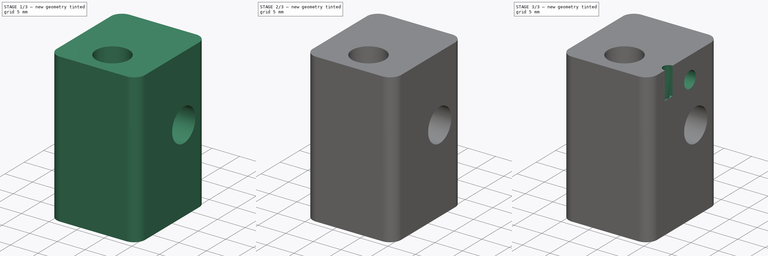
[diagram: build sequence overview — one tinted view per stage of 3, left to right]
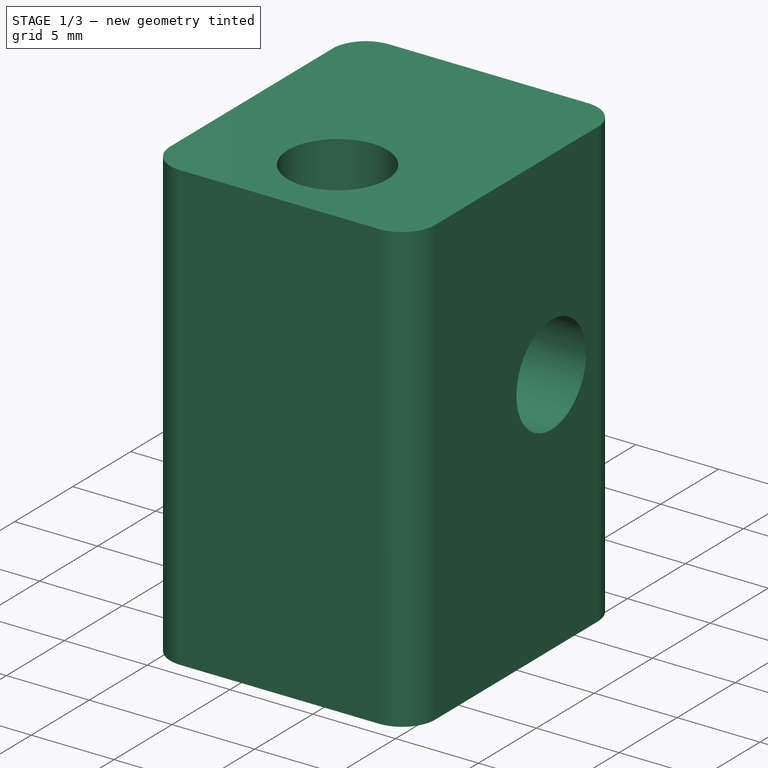
[diagram: stage 1 of 3 — iso view after this stage's code; geometry added in this stage tinted green]
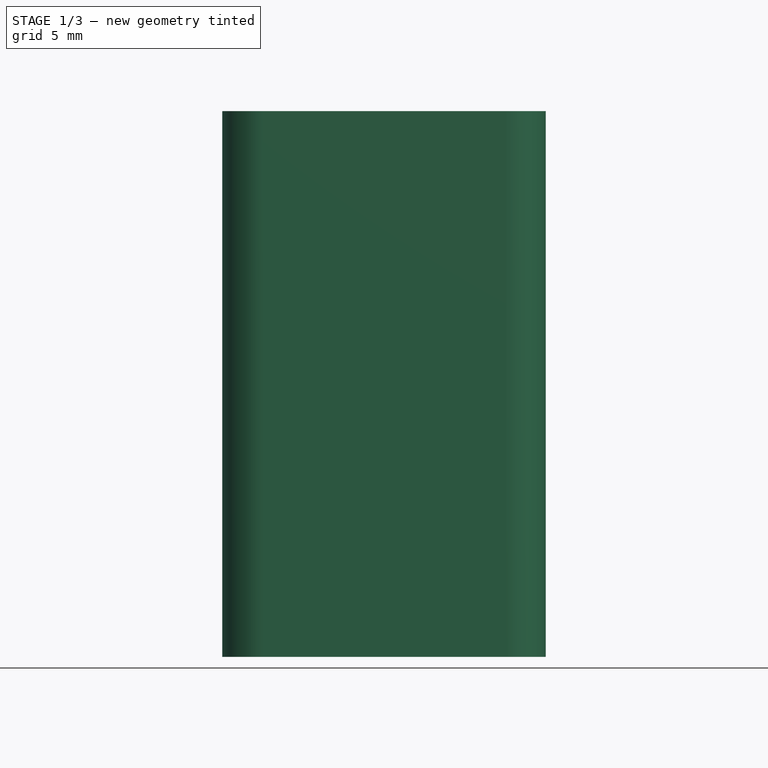
[diagram: stage 1 of 3 — front view after this stage's code; geometry added in this stage tinted green]
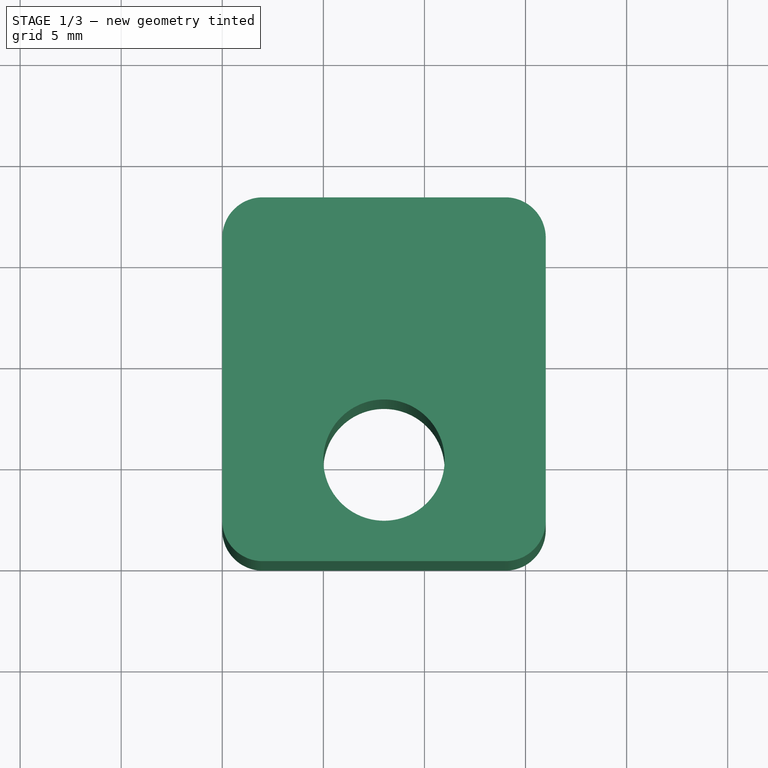
[diagram: stage 1 of 3 — top view after this stage's code; geometry added in this stage tinted green]
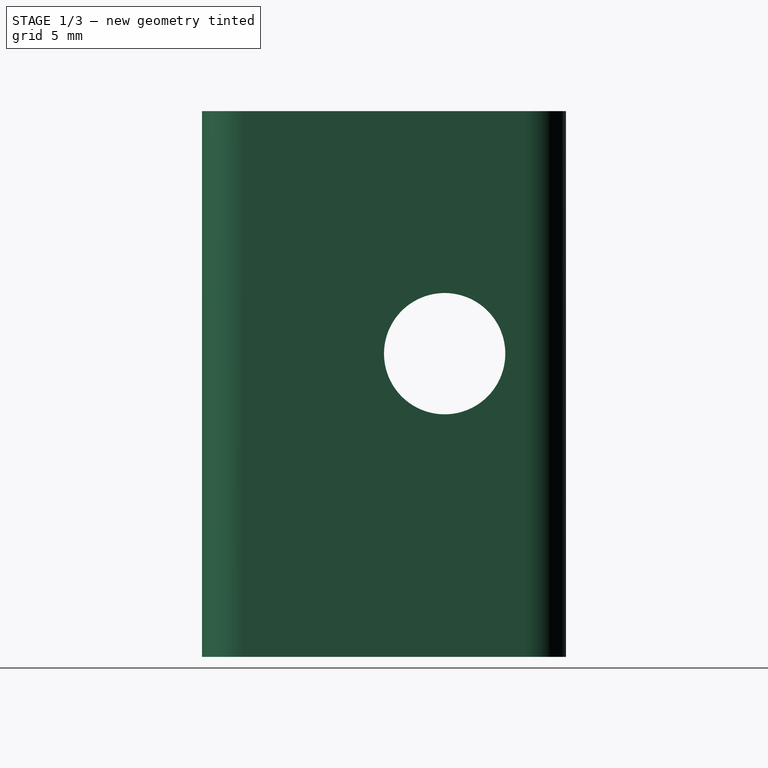
[diagram: stage 1 of 3 — right view after this stage's code; geometry added in this stage tinted green]
FCSTD DOCUMENT  (FreeCAD 0.16R4695 (Git))
Label: extended_hex_HB_0.1_drawing
License: CC-BY 3.0
LicenseURL: http://creativecommons.org/licenses/by/3.0/
objects: Drawing::FeatureView×26, Sketcher::SketchObject×7, PartDesign::Pocket×6, Drawing::FeatureViewPart×6, PartDesign::Pad×1, PartDesign::Fillet×1, Drawing::FeaturePage×1
note: 22 computed .brp shape members not serialized (recipe doc carries the construction recipe); baked Part::Feature solids carry a one-line shape summary decoded from their .brp

FEATURE [Sketcher::SketchObject] Sketch
  sketch-geometry (5):
    g0: LineSegment StartX=0 StartY=0 StartZ=0 EndX=16 EndY=0 EndZ=0
    g1: LineSegment StartX=16 StartY=0 StartZ=0 EndX=16 EndY=18 EndZ=0
    g2: LineSegment StartX=16 StartY=18 StartZ=0 EndX=0 EndY=18 EndZ=0
    g3: LineSegment StartX=0 StartY=18 StartZ=0 EndX=0 EndY=0 EndZ=0
    g4: Circle CenterX=8 CenterY=5 CenterZ=0 NormalX=0 NormalY=0 NormalZ=1 Radius=3
  constraints (14):
    c: Coincident(g0,g1)
    c: Coincident(g1,g2)
    c: Coincident(g2,g3)
    c: Coincident(g3,g0)
    c: Horizontal(g0)
    c: Horizontal(g2)
    c: Vertical(g1)
    c: Vertical(g3)
    c: Coincident(g0,g-1)
    c: DistanceY(g3) = -18
    c: DistanceX(g2) = -16
    c: DistanceX(g4) = 8
    c: DistanceY(g4) = 5
    c: Radius(g4) = 3
FEATURE [PartDesign::Pad] Pad
  Length = 27
  Length2 = 100
  Sketch = -> Sketch
  Type = 0
FEATURE [PartDesign::Fillet] Fillet
  Base = -> Pad [Edge1,Edge2,Edge8,Edge5]
  Radius = 2
FEATURE [Sketcher::SketchObject] Sketch001
  Placement = pos=(16,0,0) rot=(0.57735,0.57735,0.57735;2.0944rad)
  Support = -> Fillet [Face7]
  sketch-geometry (1):
    g0: Circle CenterX=12 CenterY=15 CenterZ=0 NormalX=0 NormalY=0 NormalZ=1 Radius=3
  constraints (3):
    c: DistanceX(g0) = 12
    c: DistanceY(g0) = 15
    c: Radius(g0) = 3
FEATURE [PartDesign::Pocket] Pocket
  Length = 5
  Sketch = -> Sketch001
  Type = 1
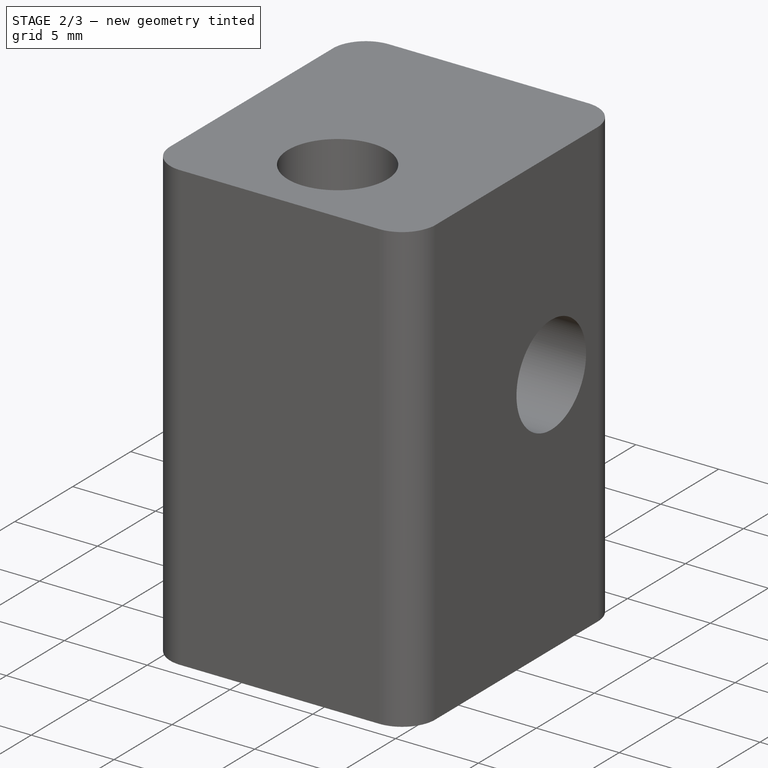
[diagram: stage 2 of 3 — iso view after this stage's code; geometry added in this stage tinted green]
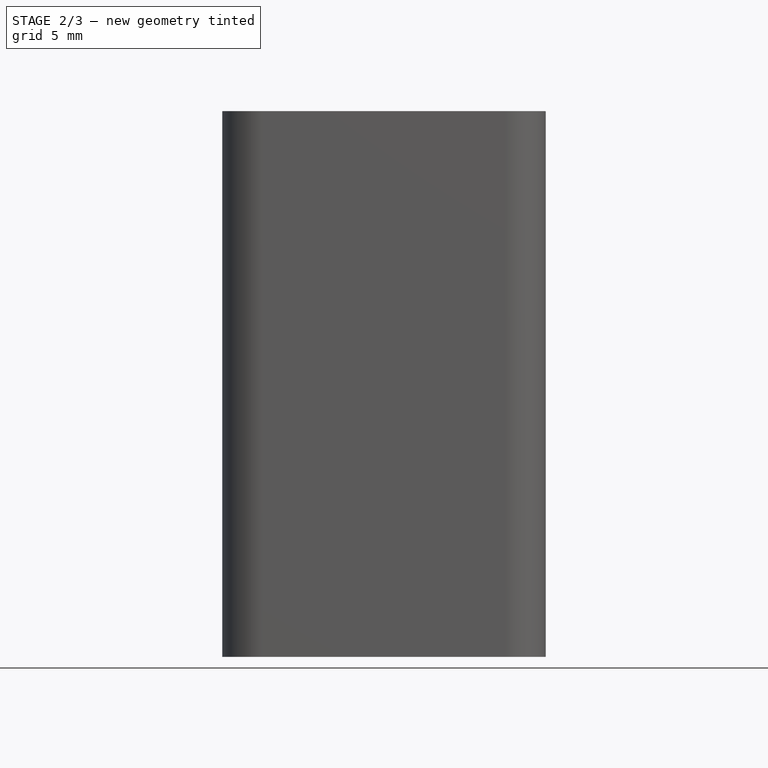
[diagram: stage 2 of 3 — front view after this stage's code; geometry added in this stage tinted green]
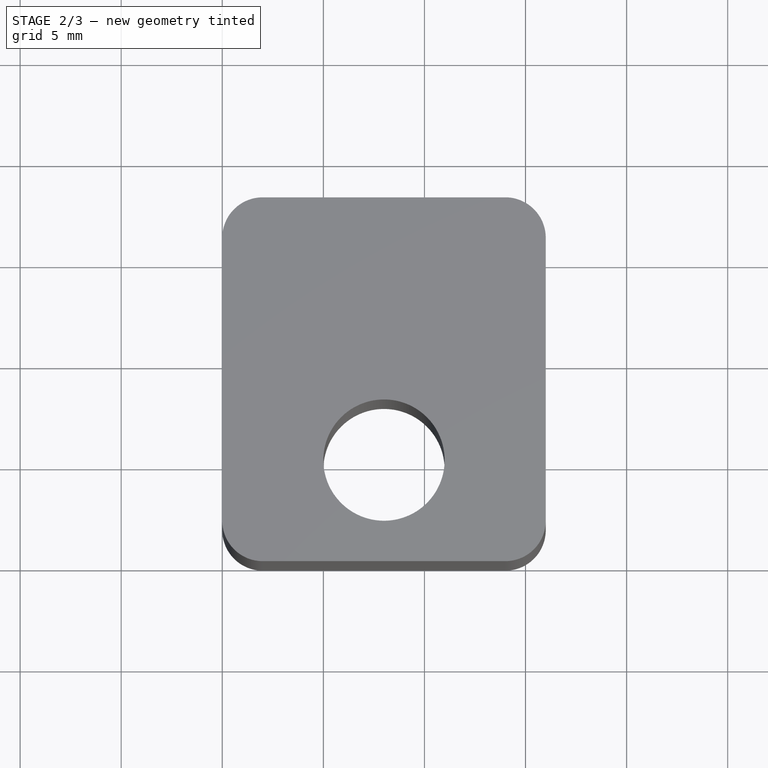
[diagram: stage 2 of 3 — top view after this stage's code; geometry added in this stage tinted green]
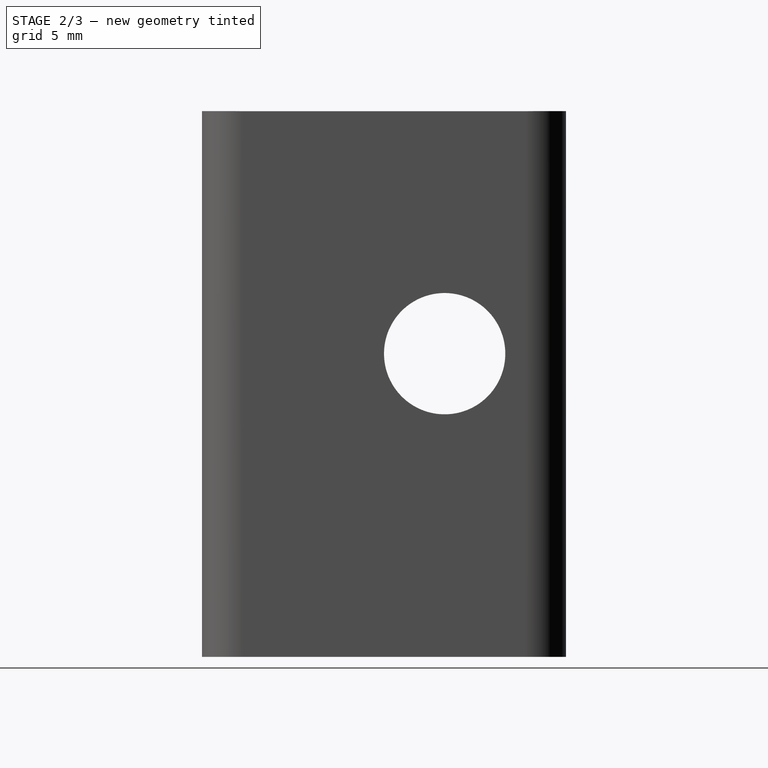
[diagram: stage 2 of 3 — right view after this stage's code; geometry added in this stage tinted green]
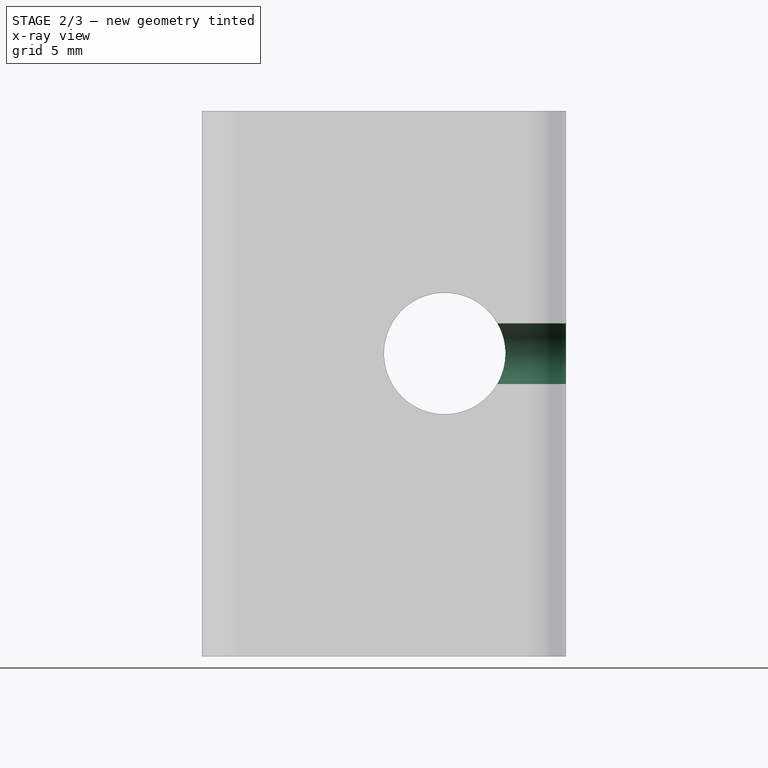
[diagram: stage 2 of 3 — x-ray composite at the right view; earlier geometry ghosted, this stage's added geometry solid]
FEATURE [Sketcher::SketchObject] Sketch002
  Placement = pos=(0,18,0) rot=(0,0.707107,0.707107;3.14159rad)
  Support = -> Pocket [Face10]
  sketch-geometry (1):
    g0: Circle CenterX=-8 CenterY=15 CenterZ=0 NormalX=0 NormalY=0 NormalZ=1 Radius=1.5
  constraints (3):
    c: DistanceX(g0) = -8
    c: DistanceY(g0) = 15
    c: Radius(g0) = 1.5
FEATURE [PartDesign::Pocket] Pocket001
  Length = 5
  Sketch = -> Sketch002
  Type = 0
FEATURE [Sketcher::SketchObject] Sketch003
  ExternalGeometry = -> [Pocket001]
  Placement = pos=(0,0,0) rot=(1,0,0;1.5708rad)
  Support = -> Pocket001 [Face1]
  sketch-geometry (3):
    g0: LineSegment StartX=15 StartY=27.2 StartZ=0 EndX=20 EndY=26.1372 EndZ=0
    g1: LineSegment StartX=20 StartY=26.1372 StartZ=0 EndX=20 EndY=27.2 EndZ=0
    g2: LineSegment StartX=20 StartY=27.2 StartZ=0 EndX=15 EndY=27.2 EndZ=0
  constraints (9):
    c: Coincident(g0,g1)
    c: Vertical(g1)
    c: Coincident(g1,g2)
    c: Coincident(g2,g0)
    c: Horizontal(g2)
    c: Angle(g0,g2) = 0.20944
    c: DistanceX(g2) = -5
    c: DistanceX(g-3,g0) = 1
    c: DistanceY(g0,g-3) = -0.2
FEATURE [PartDesign::Pocket] Pocket002
  Length = 5
  Sketch = -> Sketch003
  Type = 1
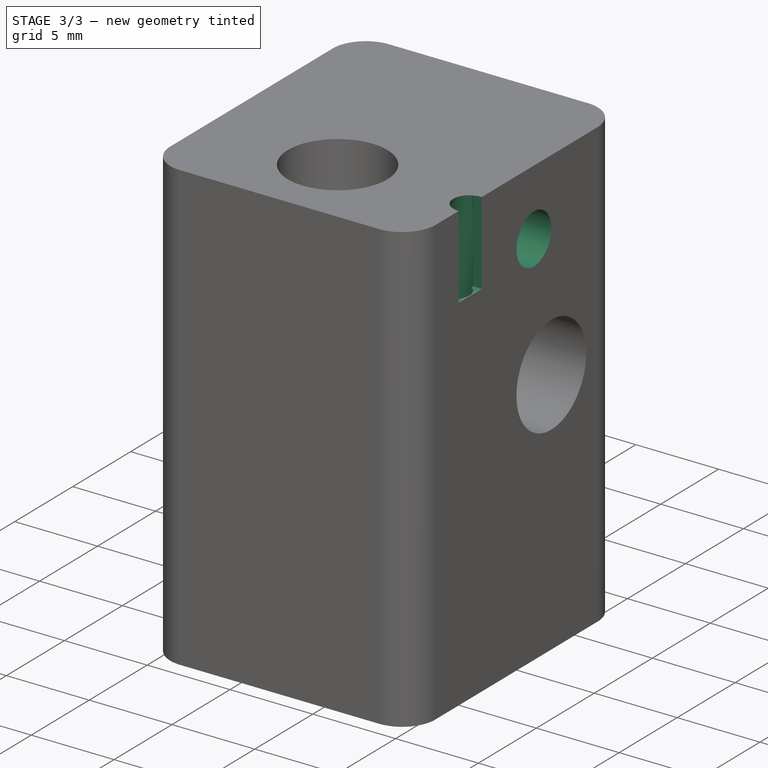
[diagram: stage 3 of 3 — iso view after this stage's code; geometry added in this stage tinted green]
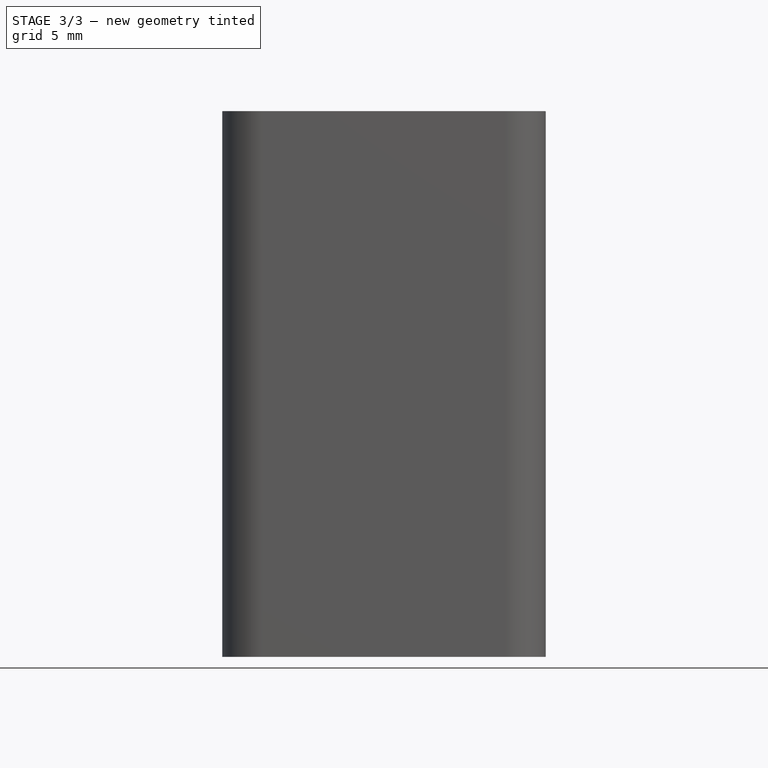
[diagram: stage 3 of 3 — front view after this stage's code; geometry added in this stage tinted green]
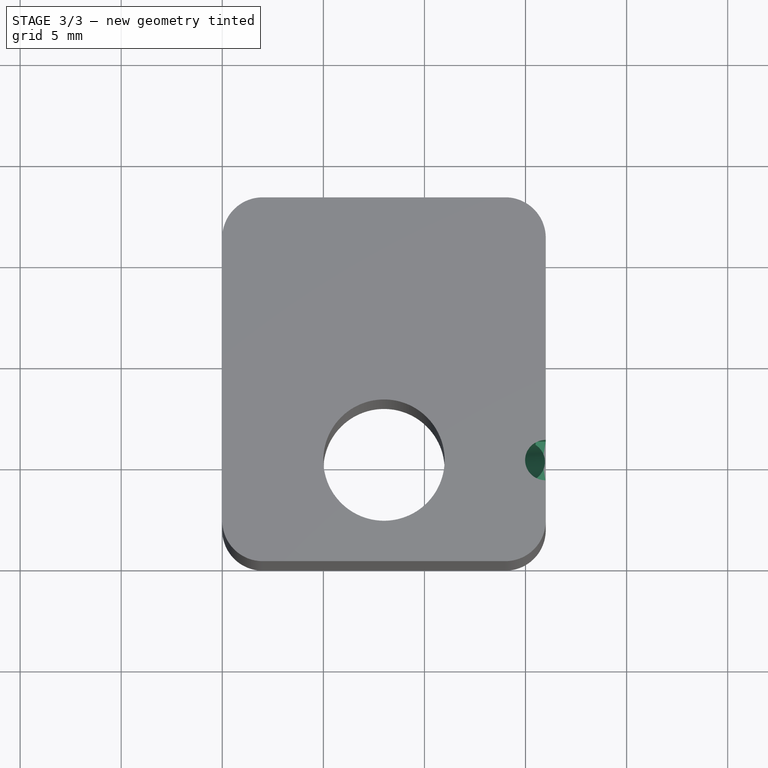
[diagram: stage 3 of 3 — top view after this stage's code; geometry added in this stage tinted green]
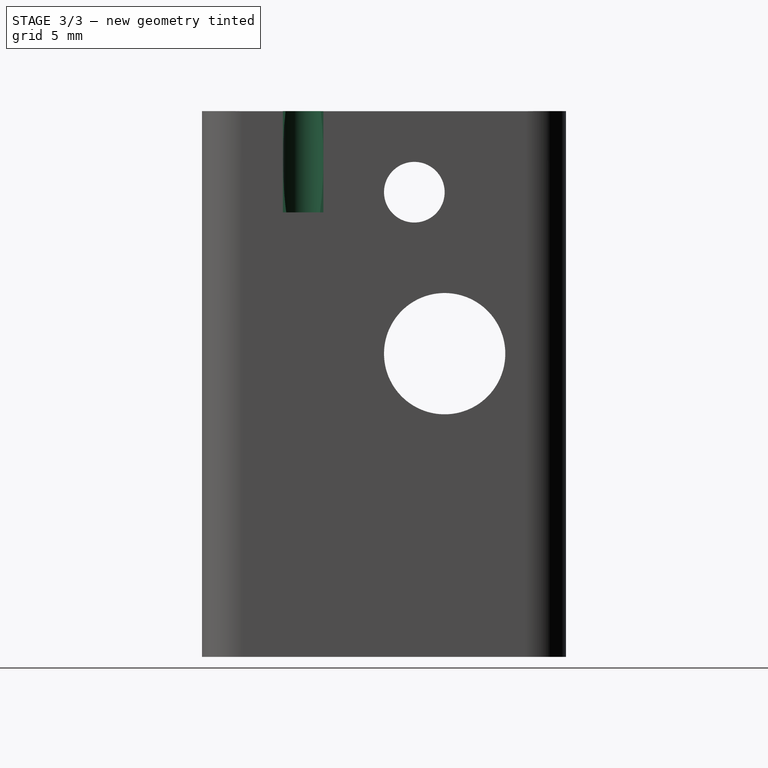
[diagram: stage 3 of 3 — right view after this stage's code; geometry added in this stage tinted green]
FEATURE [Sketcher::SketchObject] Sketch004
  ExternalGeometry = -> [Pocket002]
  Placement = pos=(6.18003,0,29.0747) rot=(0,1,0;0.20944rad)
  Support = -> Pocket002 [Face12]
  sketch-geometry (1):
    g0: Circle CenterX=10.0394 CenterY=5 CenterZ=0 NormalX=0 NormalY=0 NormalZ=1 Radius=1
  constraints (3):
    c: PointOnObject(g0,g-3)
    c: DistanceY(g-1,g0) = 5
    c: Radius(g0) = 1
FEATURE [PartDesign::Pocket] Pocket003
  Length = 14.5
  Sketch = -> Sketch004
  Type = 0
FEATURE [Sketcher::SketchObject] Sketch005
  ExternalGeometry = -> [Pocket003]
  Placement = pos=(16,0,0) rot=(0.57735,0.57735,0.57735;2.0944rad)
  Support = -> Pocket003 [Face7]
  sketch-geometry (4):
    g0: LineSegment StartX=4 StartY=26.9874 StartZ=0 EndX=6 EndY=26.9874 EndZ=0
    g1: LineSegment StartX=6 StartY=26.9874 StartZ=0 EndX=6 EndY=21.9874 EndZ=0
    g2: LineSegment StartX=6 StartY=21.9874 StartZ=0 EndX=4 EndY=21.9874 EndZ=0
    g3: LineSegment StartX=4 StartY=21.9874 StartZ=0 EndX=4 EndY=26.9874 EndZ=0
  constraints (11):
    c: Coincident(g0,g1)
    c: Coincident(g1,g2)
    c: Coincident(g2,g3)
    c: Coincident(g3,g0)
    c: Horizontal(g0)
    c: Horizontal(g2)
    c: Vertical(g1)
    c: Vertical(g3)
    c: Coincident(g0,g-3)
    c: DistanceX(g0) = 2
    c: DistanceY(g3) = 5
FEATURE [PartDesign::Pocket] Pocket004
  Length = 0.5
  Sketch = -> Sketch005
  Type = 0
FEATURE [Sketcher::SketchObject] Sketch006
  ExternalGeometry = -> [Pocket004]
  Placement = pos=(16,0,0) rot=(0.57735,0.57735,0.57735;2.0944rad)
  Support = -> Pocket004 [Face7]
  sketch-geometry (1):
    g0: Circle CenterX=10.5 CenterY=22.9874 CenterZ=0 NormalX=0 NormalY=0 NormalZ=1 Radius=1.5
  constraints (3):
    c: Radius(g0) = 1.5
    c: DistanceY(g0,g-3) = 4
    c: DistanceX(g0,g-5) = 1.5
FEATURE [PartDesign::Pocket] Pocket005
  Length = 5
  Sketch = -> Sketch006
  Type = 1
FEATURE [Drawing::FeatureView] dim001
  Rotation = 0
  ViewResult = <g   >\n <line x1="137.644760" y1="75.312608" x2="131.916962" y2="48.366533" style="stroke:rgb(0,0,255);stroke-width:0.300000" />\n<line x1="138.000000" y1="67.768900" x2="138.000000" y2="47.727154" style="stroke:rgb(0,0,255);stroke-width:0.300000" />\n<path d = "M 132.124882 49.344678 A 28.256657 28.256657 0 0 1 138.000000 48.727154" style="stroke:rgb(0,0,255);stroke-width:0.30;fill:none" />\n<polygon points="132.124882,49.344678 135.267239,49.699065 136.037465,48.512999 134.851399,47.742773" style="fill:rgb(0,0,255);stroke:rgb(0,0,255);stroke-width:0" />\n<polygon points="138.000000,48.727154 135.000000,47.727154 134.000000,48.727154 135.000000,49.727154" style="fill:rgb(0,0,255);stroke:rgb(0,0,255);stroke-width:0" />\n<text x="132.736132" y="45.849695" font-family="Verdana" font-size="3.6" fill="rgb(255,0,0)" text-anchor="-1.73828317591"  >12.0°</text>\n <!--12.0004747513-->\n <!--%3.1f°-->\n</g> 
  Visible = true
  X = 0
  Y = 0
FEATURE [Drawing::FeatureView] centerLines001
  Rotation = 0
  ViewResult = <g  transform="scale(1.500000,1.500000)" stroke="rgb(0,0,255)"  stroke-width="0.200000" >\n<path d="M 62.666667,60.903600 L 62.666667,59.570267 M 62.666667,58.236933 L 62.666667,54.236933 M 62.666667,52.903600 L 62.666667,51.570267 M 62.666667,50.236933 L 62.666667,46.236933 M 62.666667,44.903600 L 62.666667,43.570267 M 62.666667,42.236933 L 62.666667,39.981991 "/>\n<path d="M 62.666667,60.903600 L 62.666667,59.570267 M 62.666667,58.236933 L 62.666667,54.236933 M 62.666667,52.903600 L 62.666667,51.570267 M 62.666667,50.236933 L 62.666667,46.236933 M 62.666667,44.903600 L 62.666667,43.570267 M 62.666667,42.236933 L 62.666667,38.236933 M 62.666667,36.903600 L 62.666667,36.485445 "/>\n</g> 
  Visible = true
  X = 0
  Y = 0
FEATURE [Drawing::FeatureView] centerLines003
  Rotation = 0
  ViewResult = <g  transform="scale(1.500000,1.500000)" stroke="rgb(0,0,255)"  stroke-width="0.200000" >\n<path d="M 69.666667,58.500000 L 69.666667,57.166667 M 69.666667,55.833333 L 69.666667,51.833333 M 69.666667,50.500000 L 69.666667,49.166667 M 69.666667,47.833333 L 69.666667,43.833333 M 69.666667,42.500000 L 69.666667,41.166667 "/>\n<path d="M 69.666667,58.500000 L 71.000000,58.500000 M 72.333333,58.500000 L 76.309959,58.500000 "/>\n<path d="M 69.666667,58.500000 L 69.666667,59.833333 "/>\n<path d="M 69.666667,58.500000 L 68.333333,58.500000 "/>\n</g> 
  Visible = true
  X = 0
  Y = 0
FEATURE [Drawing::FeatureViewPart] Ortho005  label="Ortho_2_0"
  Direction = (-1,0,0)
  HiddenWidth = 0.15
  LineWidth = 0.35
  Rotation = 90
  Scale = 1.5
  ShowHiddenLines = true
  ShowSmoothLines = false
  Source = -> Pocket005
  Tolerance = 0.05
  ViewResult = <blob: 9644 chars omitted>
  Visible = true
  X = 213.5
  Y = 110.25
FEATURE [Drawing::FeatureViewPart] Ortho003  label="Ortho_0_1"
  Direction = (0,0,1)
  HiddenWidth = 0.15
  LineWidth = 0.35
  Rotation = 90
  Scale = 1.5
  ShowHiddenLines = true
  ShowSmoothLines = false
  Source = -> Pocket005
  Tolerance = 0.05
  ViewResult = <blob: 6862 chars omitted>
  Visible = true
  X = 86.5
  Y = 18
FEATURE [Drawing::FeatureViewPart] Ortho004  label="Ortho_0_-1"
  Direction = (0,0,-1)
  HiddenWidth = 0.15
  LineWidth = 0.35
  Rotation = 90
  Scale = 1.5
  ShowHiddenLines = true
  ShowSmoothLines = false
  Source = -> Pocket005
  Tolerance = 0.05
  ViewResult = <blob: 7122 chars omitted>
  Visible = true
  X = 86.5
  Y = 162
FEATURE [Drawing::FeatureViewPart] Ortho002  label="Ortho_1_0"
  Direction = (0,1,0)
  HiddenWidth = 0.15
  LineWidth = 0.35
  Rotation = -90
  Scale = 1.5
  ShowHiddenLines = true
  ShowSmoothLines = false
  Source = -> Pocket005
  Tolerance = 0.05
  ViewResult = <blob: 11721 chars omitted>
  Visible = true
  X = 162
  Y = 110.25
FEATURE [Drawing::FeatureViewPart] Ortho001  label="Ortho_-1_0"
  Direction = (0,-1,0)
  HiddenWidth = 0.15
  LineWidth = 0.35
  Rotation = 90
  Scale = 1.5
  ShowHiddenLines = true
  ShowSmoothLines = false
  Source = -> Pocket005
  Tolerance = 0.05
  ViewResult = <blob: 12300 chars omitted>
  Visible = true
  X = 38
  Y = 110.25
FEATURE [Drawing::FeatureViewPart] Ortho  label="Ortho_0_0"
  Direction = (1,0,0)
  HiddenWidth = 0.15
  LineWidth = 0.35
  Rotation = -90
  Scale = 1.5
  ShowHiddenLines = true
  ShowSmoothLines = false
  Source = -> Pocket005
  Tolerance = 0.05
  ViewResult = <blob: 9604 chars omitted>
  Visible = true
  X = 86.5
  Y = 110.25
FEATURE [Drawing::FeatureView] centerLines002
  Rotation = 0
  ViewResult = <g  transform="scale(1.500000,1.500000)" stroke="rgb(0,0,255)"  stroke-width="0.200000" >\n<path d="M 68.166667,50.512600 L 68.166667,51.845933 "/>\n<path d="M 68.166667,50.512600 L 66.833333,50.512600 "/>\n<path d="M 68.166667,50.512600 L 68.166667,49.179267 M 68.166667,47.845933 L 68.166667,43.845933 M 68.166667,42.512600 L 68.166667,41.179267 "/>\n<path d="M 68.166667,50.512600 L 69.500000,50.512600 M 70.833333,50.512600 L 73.687568,50.512600 "/>\n</g> 
  Visible = true
  X = 0
  Y = 0
FEATURE [Drawing::FeatureView] dim002
  Rotation = 0
  ViewResult = <g   >\n<line x1="86.500000" y1="67.750000" x2="86.500000" y2="61.356760" style="stroke:rgb(0,0,255);stroke-width:0.30" />\n<line x1="94.000000" y1="61.972987" x2="94.000000" y2="63.356760" style="stroke:rgb(0,0,255);stroke-width:0.30" />\n<line x1="86.500000" y1="62.356760" x2="94.000000" y2="62.356760" style="stroke:rgb(0,0,255);stroke-width:0.30" />\n<polygon points="86.500000,62.356760 83.500000,61.356760 82.500000,62.356760 83.500000,63.356760" style="fill:rgb(0,0,255);stroke:rgb(0,0,255);stroke-width:0" /><polygon points="94.000000,62.356760 97.000000,63.356760 98.000000,62.356760 97.000000,61.356760" style="fill:rgb(0,0,255);stroke:rgb(0,0,255);stroke-width:0" />\n<text x="71.812791" y="63.256373" font-family="Verdana" font-size="3.6" fill="rgb(255,0,0)" text-anchor="inherit"  >5.00</text>\n</g> 
  Visible = true
  X = 0
  Y = 0
FEATURE [Drawing::FeatureView] dim003
  Rotation = 0
  ViewResult = <g   >\n<line x1="84.500000" y1="110.250000" x2="74.924698" y2="110.250000" style="stroke:rgb(0,0,255);stroke-width:0.30" />\n<line x1="84.500000" y1="69.750000" x2="74.924698" y2="69.750000" style="stroke:rgb(0,0,255);stroke-width:0.30" />\n<line x1="75.924698" y1="110.250000" x2="75.924698" y2="69.750000" style="stroke:rgb(0,0,255);stroke-width:0.30" />\n<polygon points="75.924698,110.250000 76.924698,107.250000 75.924698,106.250000 74.924698,107.250000" style="fill:rgb(0,0,255);stroke:rgb(0,0,255);stroke-width:0" /><polygon points="75.924698,69.750000 74.924698,72.750000 75.924698,73.750000 76.924698,72.750000" style="fill:rgb(0,0,255);stroke:rgb(0,0,255);stroke-width:0" />\n<text x="72.950904" y="90.421948" font-family="Verdana" font-size="3.6" fill="rgb(255,0,0)" text-anchor="inherit" transform="rotate(-90.000000 72.950904,90.421948)" >27.00</text>\n</g> 
  Visible = true
  X = 0
  Y = 0
FEATURE [Drawing::FeatureView] dim004
  Rotation = 0
  ViewResult = <g   >\n<line x1="86.500000" y1="67.750000" x2="86.500000" y2="54.583294" style="stroke:rgb(0,0,255);stroke-width:0.30" />\n<line x1="102.250000" y1="59.768901" x2="102.250000" y2="54.583294" style="stroke:rgb(0,0,255);stroke-width:0.30" />\n<line x1="86.500000" y1="55.583294" x2="102.250000" y2="55.583294" style="stroke:rgb(0,0,255);stroke-width:0.30" />\n<polygon points="86.500000,55.583294 89.500000,56.583294 90.500000,55.583294 89.500000,54.583294" style="fill:rgb(0,0,255);stroke:rgb(0,0,255);stroke-width:0" /><polygon points="102.250000,55.583294 99.250000,54.583294 98.250000,55.583294 99.250000,56.583294" style="fill:rgb(0,0,255);stroke:rgb(0,0,255);stroke-width:0" />\n<text x="70.896032" y="56.839060" font-family="Verdana" font-size="3.6" fill="rgb(255,0,0)" text-anchor="inherit"  >10.50</text>\n</g> 
  Visible = true
  X = 0
  Y = 0
FEATURE [Drawing::FeatureView] dim005
  Rotation = 0
  ViewResult = <g   >\n<line x1="86.500000" y1="67.750000" x2="86.500000" y2="48.902706" style="stroke:rgb(0,0,255);stroke-width:0.30" />\n<line x1="104.500000" y1="59.750000" x2="104.500000" y2="48.902706" style="stroke:rgb(0,0,255);stroke-width:0.30" />\n<line x1="86.500000" y1="49.902706" x2="104.500000" y2="49.902706" style="stroke:rgb(0,0,255);stroke-width:0.30" />\n<polygon points="86.500000,49.902706 89.500000,50.902706 90.500000,49.902706 89.500000,48.902706" style="fill:rgb(0,0,255);stroke:rgb(0,0,255);stroke-width:0" /><polygon points="104.500000,49.902706 101.500000,48.902706 100.500000,49.902706 101.500000,50.902706" style="fill:rgb(0,0,255);stroke:rgb(0,0,255);stroke-width:0" />\n<text x="71.507204" y="50.727333" font-family="Verdana" font-size="3.6" fill="rgb(255,0,0)" text-anchor="inherit"  >12.00</text>\n</g> 
  Visible = true
  X = 0
  Y = 0
FEATURE [Drawing::FeatureView] dim006
  Rotation = 0
  ViewResult = <g   >\n<line x1="92.000000" y1="91.355400" x2="81.662335" y2="91.355400" style="stroke:rgb(0,0,255);stroke-width:0.30" />\n<line x1="84.797093" y1="110.250000" x2="81.662335" y2="110.250000" style="stroke:rgb(0,0,255);stroke-width:0.30" />\n<line x1="82.662335" y1="91.355400" x2="82.662335" y2="110.250000" style="stroke:rgb(0,0,255);stroke-width:0.30" />\n<polygon points="82.662335,91.355400 81.662335,94.355400 82.662335,95.355400 83.662335,94.355400" style="fill:rgb(0,0,255);stroke:rgb(0,0,255);stroke-width:0" /><polygon points="82.662335,110.250000 83.662335,107.250000 82.662335,106.250000 81.662335,107.250000" style="fill:rgb(0,0,255);stroke:rgb(0,0,255);stroke-width:0" />\n<text x="81.033521" y="105.465738" font-family="Verdana" font-size="3.6" fill="rgb(255,0,0)" text-anchor="inherit" transform="rotate(-90.000000 81.033521,105.465738)" >12.60</text>\n</g> 
  Visible = true
  X = 0
  Y = 0
FEATURE [Drawing::FeatureView] dim007
  Rotation = 0
  ViewResult = <g   >\n<line x1="113.490900" y1="110.250000" x2="122.672442" y2="110.250000" style="stroke:rgb(0,0,255);stroke-width:0.30" />\n<line x1="106.500000" y1="87.750000" x2="122.672442" y2="87.750000" style="stroke:rgb(0,0,255);stroke-width:0.30" />\n<line x1="121.672442" y1="110.250000" x2="121.672442" y2="87.750000" style="stroke:rgb(0,0,255);stroke-width:0.30" />\n<polygon points="121.672442,110.250000 122.672442,107.250000 121.672442,106.250000 120.672442,107.250000" style="fill:rgb(0,0,255);stroke:rgb(0,0,255);stroke-width:0" /><polygon points="121.672442,87.750000 120.672442,90.750000 121.672442,91.750000 122.672442,90.750000" style="fill:rgb(0,0,255);stroke:rgb(0,0,255);stroke-width:0" />\n<text x="120.206509" y="101.295973" font-family="Verdana" font-size="3.6" fill="rgb(255,0,0)" text-anchor="inherit" transform="rotate(-90.000000 120.206509,101.295973)" >15.00</text>\n</g> 
  Visible = true
  X = 0
  Y = 0
FEATURE [Drawing::FeatureView] dim008
  Rotation = 0
  ViewResult = <g   >\n<line x1="112.835850" y1="110.250000" x2="125.311122" y2="110.250000" style="stroke:rgb(0,0,255);stroke-width:0.30" />\n<line x1="104.250000" y1="75.768900" x2="125.311122" y2="75.768900" style="stroke:rgb(0,0,255);stroke-width:0.30" />\n<line x1="124.311122" y1="110.250000" x2="124.311122" y2="75.768900" style="stroke:rgb(0,0,255);stroke-width:0.30" />\n<polygon points="124.311122,110.250000 125.311122,107.250000 124.311122,106.250000 123.311122,107.250000" style="fill:rgb(0,0,255);stroke:rgb(0,0,255);stroke-width:0" /><polygon points="124.311122,75.768900 123.311122,78.768900 124.311122,79.768900 125.311122,78.768900" style="fill:rgb(0,0,255);stroke:rgb(0,0,255);stroke-width:0" />\n<text x="129.148701" y="97.337954" font-family="Verdana" font-size="3.6" fill="rgb(255,0,0)" text-anchor="inherit" transform="rotate(-90.000000 129.148701,97.337954)" >23.00</text>\n</g> 
  Visible = true
  X = 0
  Y = 0
FEATURE [Drawing::FeatureView] dimLine001
  Rotation = 0
  ViewResult = <g   >\n<line x1="112.513293" y1="63.328307" x2="102.250000" y2="75.768900" style="stroke:rgb(0,0,255);stroke-width:0.30" />\n<polygon points="102.250000,75.768900 104.930506,74.091138 104.795503,72.683383 103.387748,72.818387" style="fill:rgb(0,0,255);stroke:rgb(0,0,255);stroke-width:0" />\n<line x1="112.513293" y1="63.328307" x2="121.590350" y2="63.328307" style="stroke:rgb(0,0,255);stroke-width:0.30" />\n</g> 
  Visible = true
  X = 0
  Y = 0
FEATURE [Drawing::FeatureView] dimText001
  Rotation = 0
  ViewResult = <g   >\n<text x="109.769066" y="61.639552" font-family="Verdana" font-size="3.6" fill="rgb(255,0,0)" text-anchor="inherit"  >M3 THRU</text>\n</g> 
  Visible = true
  X = 0
  Y = 0
FEATURE [Drawing::FeatureView] dimLine002
  Rotation = 0
  ViewResult = <g   >\n<line x1="79.782814" y1="132.785383" x2="94.000000" y2="145.500000" style="stroke:rgb(0,0,255);stroke-width:0.30" />\n<polygon points="94.000000,145.500000 92.430425,142.754743 91.018407,142.833522 91.097186,144.245540" style="fill:rgb(0,0,255);stroke:rgb(0,0,255);stroke-width:0" />\n<line x1="79.782814" y1="132.785383" x2="53.839452" y2="132.785383" style="stroke:rgb(0,0,255);stroke-width:0.30" />\n</g> 
  Visible = true
  X = 0
  Y = 0
FEATURE [Drawing::FeatureView] dimText002
  Rotation = 0
  ViewResult = <g   >\n<text x="52.723608" y="131.669540" font-family="Verdana" font-size="3.6" fill="rgb(255,0,0)" text-anchor="inherit"  >M6x1 THRU ALL</text>\n</g> 
  Visible = true
  X = 0
  Y = 0
FEATURE [Drawing::FeatureView] centerLines004
  Rotation = 0
  ViewResult = <g  transform="scale(1.500000,1.500000)" stroke="rgb(0,0,255)"  stroke-width="0.200000" >\n<path d="M 62.666667,100.000000 L 62.666667,101.333333 "/>\n<path d="M 62.666667,100.000000 L 61.333333,100.000000 "/>\n<path d="M 62.666667,100.000000 L 62.666667,98.666667 M 62.666667,97.333333 L 62.666667,96.892416 "/>\n<path d="M 62.666667,100.000000 L 64.000000,100.000000 M 65.333333,100.000000 L 65.648796,100.000000 "/>\n</g> 
  Visible = true
  X = 0
  Y = 0
FEATURE [Drawing::FeatureView] dim009
  Rotation = 0
  ViewResult = <g   >\n<line x1="92.000000" y1="150.000000" x2="76.272166" y2="150.000000" style="stroke:rgb(0,0,255);stroke-width:0.30" />\n<line x1="87.500000" y1="162.000000" x2="76.272166" y2="162.000000" style="stroke:rgb(0,0,255);stroke-width:0.30" />\n<line x1="77.272166" y1="150.000000" x2="77.272166" y2="162.000000" style="stroke:rgb(0,0,255);stroke-width:0.30" />\n<polygon points="77.272166,150.000000 76.272166,153.000000 77.272166,154.000000 78.272166,153.000000" style="fill:rgb(0,0,255);stroke:rgb(0,0,255);stroke-width:0" /><polygon points="77.272166,162.000000 78.272166,159.000000 77.272166,158.000000 76.272166,159.000000" style="fill:rgb(0,0,255);stroke:rgb(0,0,255);stroke-width:0" />\n<text x="74.203597" y="159.844590" font-family="Verdana" font-size="3.6" fill="rgb(255,0,0)" text-anchor="inherit" transform="rotate(-90.000000 74.203597,159.844590)" >8.00</text>\n</g> 
  Visible = true
  X = 0
  Y = 0
FEATURE [Drawing::FeatureView] dim010
  Rotation = 0
  ViewResult = <g   >\n<line x1="98.056415" y1="138.000000" x2="68.182301" y2="138.000000" style="stroke:rgb(0,0,255);stroke-width:0.30" />\n<line x1="98.445635" y1="162.000000" x2="68.182301" y2="162.000000" style="stroke:rgb(0,0,255);stroke-width:0.30" />\n<line x1="69.182301" y1="138.000000" x2="69.182301" y2="162.000000" style="stroke:rgb(0,0,255);stroke-width:0.30" />\n<polygon points="69.182301,138.000000 68.182301,141.000000 69.182301,142.000000 70.182301,141.000000" style="fill:rgb(0,0,255);stroke:rgb(0,0,255);stroke-width:0" /><polygon points="69.182301,162.000000 70.182301,159.000000 69.182301,158.000000 68.182301,159.000000" style="fill:rgb(0,0,255);stroke:rgb(0,0,255);stroke-width:0" />\n<text x="67.787496" y="155.381215" font-family="Verdana" font-size="3.6" fill="rgb(255,0,0)" text-anchor="inherit" transform="rotate(-90.000000 67.787496,155.381215)" >16.00</text>\n</g> 
  Visible = true
  X = 0
  Y = 0
FEATURE [Drawing::FeatureView] dim011
  Rotation = 0
  ViewResult = <g   >\n<line x1="94.000000" y1="152.000000" x2="94.000000" y2="168.655495" style="stroke:rgb(0,0,255);stroke-width:0.30" />\n<line x1="86.500000" y1="161.000000" x2="86.500000" y2="168.655495" style="stroke:rgb(0,0,255);stroke-width:0.30" />\n<line x1="94.000000" y1="167.655495" x2="86.500000" y2="167.655495" style="stroke:rgb(0,0,255);stroke-width:0.30" />\n<polygon points="94.000000,167.655495 97.000000,168.655495 98.000000,167.655495 97.000000,166.655495" style="fill:rgb(0,0,255);stroke:rgb(0,0,255);stroke-width:0" /><polygon points="86.500000,167.655495 83.500000,166.655495 82.500000,167.655495 83.500000,168.655495" style="fill:rgb(0,0,255);stroke:rgb(0,0,255);stroke-width:0" />\n<text x="87.035797" y="171.839908" font-family="Verdana" font-size="3.6" fill="rgb(255,0,0)" text-anchor="inherit"  >5.00</text>\n</g> 
  Visible = true
  X = 0
  Y = 0
FEATURE [Drawing::FeatureView] dim012
  Rotation = 0
  ViewResult = <g   >\n<line x1="86.500000" y1="139.000000" x2="86.500000" y2="130.111618" style="stroke:rgb(0,0,255);stroke-width:0.30" />\n<line x1="113.500000" y1="139.000000" x2="113.500000" y2="130.111618" style="stroke:rgb(0,0,255);stroke-width:0.30" />\n<line x1="86.500000" y1="131.111618" x2="113.500000" y2="131.111618" style="stroke:rgb(0,0,255);stroke-width:0.30" />\n<polygon points="86.500000,131.111618 89.500000,132.111618 90.500000,131.111618 89.500000,130.111618" style="fill:rgb(0,0,255);stroke:rgb(0,0,255);stroke-width:0" /><polygon points="113.500000,131.111618 110.500000,130.111618 109.500000,131.111618 110.500000,132.111618" style="fill:rgb(0,0,255);stroke:rgb(0,0,255);stroke-width:0" />\n<text x="94.288781" y="129.158892" font-family="Verdana" font-size="3.6" fill="rgb(255,0,0)" text-anchor="inherit"  >18.00</text>\n</g> 
  Visible = true
  X = 0
  Y = 0
FEATURE [Drawing::FeatureView] dimLine003
  Rotation = 0
  ViewResult = <g   >\n<line x1="158.728746" y1="61.650357" x2="150.000000" y2="85.500000" style="stroke:rgb(0,0,255);stroke-width:0.30" />\n<polygon points="150.000000,85.500000 151.970166,83.026451 151.374780,81.743675 150.092004,82.339061" style="fill:rgb(0,0,255);stroke:rgb(0,0,255);stroke-width:0" />\n<line x1="158.728746" y1="61.650357" x2="181.324578" y2="61.650357" style="stroke:rgb(0,0,255);stroke-width:0.30" />\n</g> 
  Visible = true
  X = 0
  Y = 0
FEATURE [Drawing::FeatureView] dimText003
  Rotation = 0
  ViewResult = <g   >\n<text x="154.823294" y="60.255552" font-family="Verdana" font-size="3.6" fill="rgb(255,0,0)" text-anchor="inherit"  >M3x1, Depth 5mm</text>\n</g> 
  Visible = true
  X = 0
  Y = 0
FEATURE [Drawing::FeatureView] dimText004
  Rotation = 0
  ViewResult = <g   >\n<text x="121.928951" y="135.985923" font-family="Verdana" font-size="3.6" fill="rgb(255,0,0)" text-anchor="inherit"  >Lead in chamfer 0.5mm</text>\n</g> 
  Visible = true
  X = 0
  Y = 0
FEATURE [Drawing::FeatureView] dimLine005
  Rotation = 0
  ViewResult = <g   >\n<line x1="74.203597" y1="42.402055" x2="89.500000" y2="30.000000" style="stroke:rgb(0,0,255);stroke-width:0.30" />\n<polygon points="89.500000,30.000000 86.539912,31.112599 86.392934,32.519155 87.799489,32.666133" style="fill:rgb(0,0,255);stroke:rgb(0,0,255);stroke-width:0" />\n<line x1="74.203597" y1="42.402055" x2="36.264916" y2="42.402055" style="stroke:rgb(0,0,255);stroke-width:0.30" />\n</g> 
  Visible = true
  X = 0
  Y = 0
FEATURE [Drawing::FeatureView] dimText005
  Rotation = 0
  ViewResult = <g   >\n<text x="30.406737" y="41.007251" font-family="Verdana" font-size="3.6" fill="rgb(255,0,0)" text-anchor="inherit"  >Lead in chamfer 0.5mm</text>\n</g> 
  Visible = true
  X = 0
  Y = 0
FEATURE [Drawing::FeatureView] dimLine004
  Rotation = 0
  ViewResult = <g   >\n<line x1="121.928951" y1="137.208268" x2="98.500000" y2="150.000000" style="stroke:rgb(0,0,255);stroke-width:0.30" />\n<polygon points="98.500000,150.000000 101.612313,149.440080 102.010807,148.083171 100.653898,147.684676" style="fill:rgb(0,0,255);stroke:rgb(0,0,255);stroke-width:0" />\n<line x1="121.928951" y1="137.208268" x2="164.711039" y2="137.208268" style="stroke:rgb(0,0,255);stroke-width:0.30" />\n</g> 
  Visible = true
  X = 0
  Y = 0
FEATURE [Drawing::FeaturePage] Page
  EditableTexts = Designed by Name | Date | Scale | Weight | Title | Subtitle | Drawing number | Sheet
  Group = -> [Ortho,Ortho001,Ortho002,Ortho003,Ortho004,Ortho005,dim001,centerLines001,centerLines003,centerLines002,dim002,dim003,dim004,dim005,dim006,dim007,dim008,dimLine001,dimText001,dimLine002,dimText002,centerLines004,dim009,dim010,dim011,dim012,dimLine003,dimText003,dimText004,dimLine005,dimText005,dimLine004]
  Template = <path>
note: 1 file-system path scrubbed to <path> (originals preserved in the JSON sidecar)
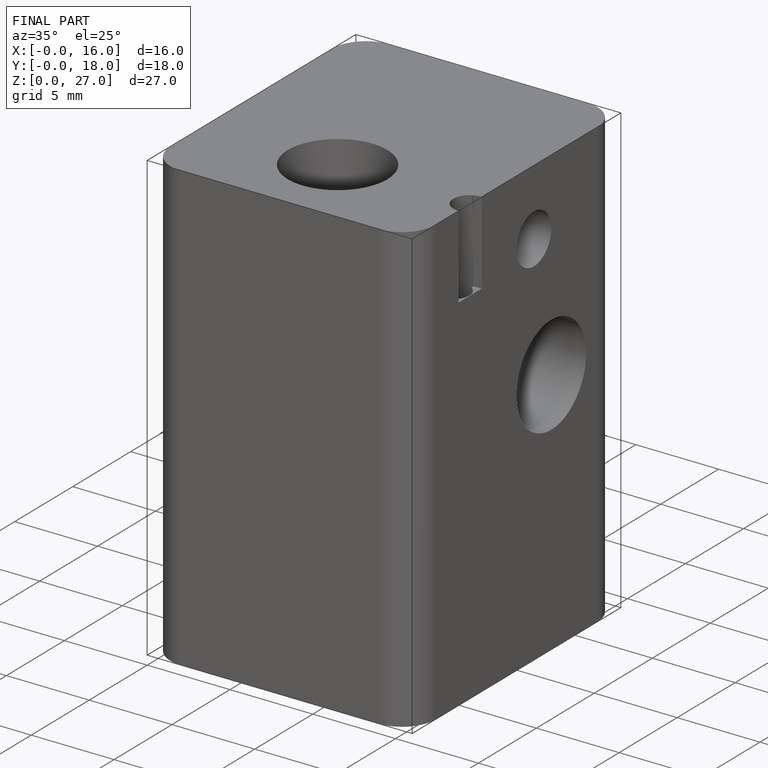
[diagram: finished part — iso view with bounding-box wireframe]
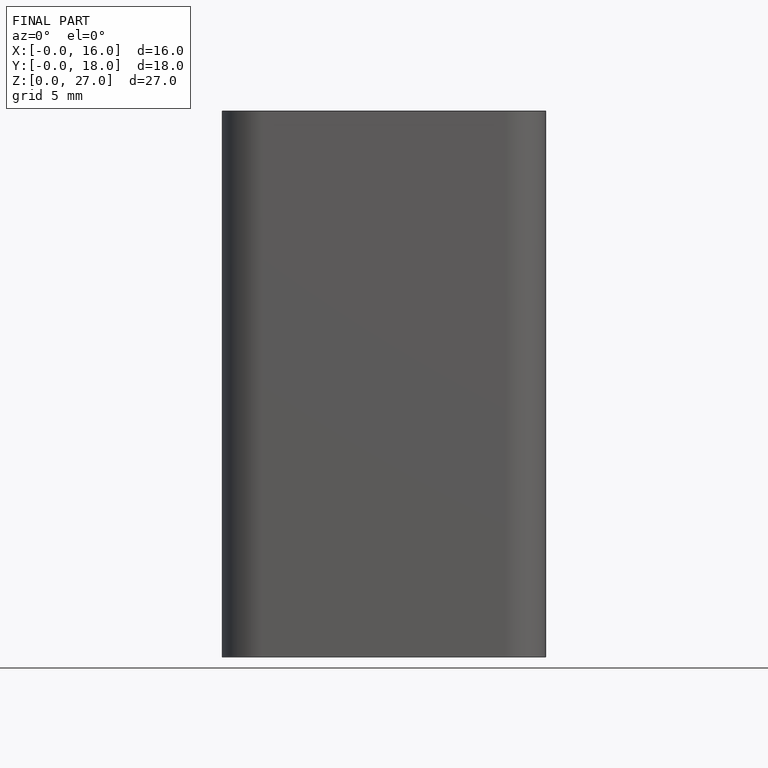
[diagram: finished part — front view with bounding-box wireframe]
